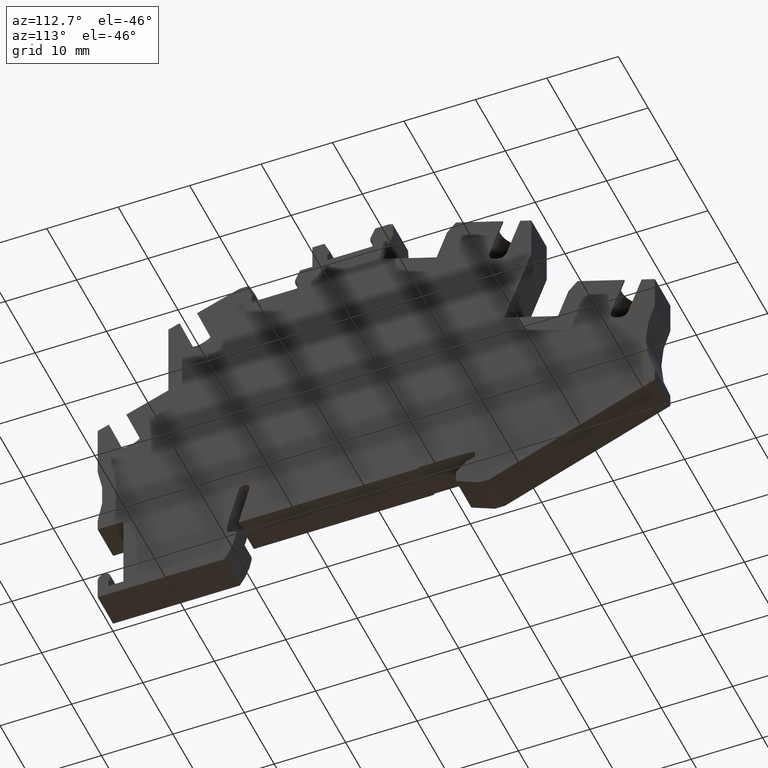
[diagram: clean part render]
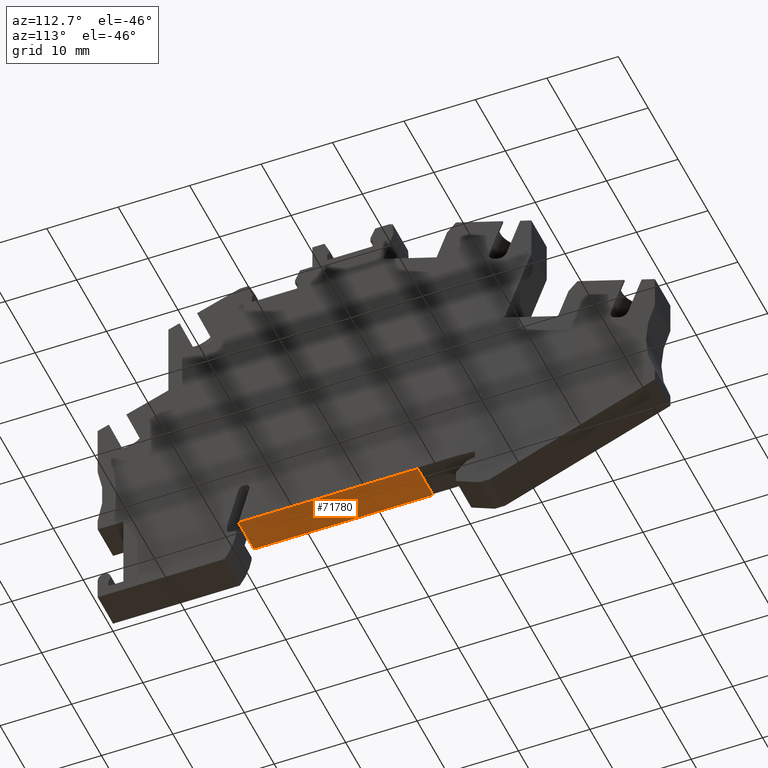
[diagram: same view with one face highlighted and labeled with its STEP entity id]
A machine part, auxiliary view. The second image highlights one B-rep face of the part: STEP entity #71780.
In plain terms, the highlighted planar face has unit normal (0, 0, 1).
Its self-contained STEP definition (entity closure, byte-faithful):
#1850=CARTESIAN_POINT('',(86.532167221675,-53.7567510120281,
48.7600000000309));
#1860=VERTEX_POINT('',#1850);
#1890=CARTESIAN_POINT('',(101.113826887599,-53.7567510120281,
48.7600000000302));
#1900=DIRECTION('',(1.,-4.24690368568111E-28,-4.8531042333675E-14));
#1910=VECTOR('',#1900,1.);
#1920=LINE('',#1890,#1910);
#1930=CARTESIAN_POINT('',(111.632167221676,-53.756751012028,
48.7600000000297));
#1940=VERTEX_POINT('',#1930);
#1950=EDGE_CURVE('',#1860,#1940,#1920,.T.);
#10480=CARTESIAN_POINT('',(111.632167221676,-53.7567510120279,
53.9100000000273));
#10490=VERTEX_POINT('',#10480);
#10520=CARTESIAN_POINT('',(101.113826887599,-53.756751012028,
53.9100000000278));
#10530=DIRECTION('',(1.,-4.24690368568111E-28,-4.8531042333675E-14));
#10540=VECTOR('',#10530,1.);
#10550=LINE('',#10520,#10540);
#10560=CARTESIAN_POINT('',(86.5321672216753,-53.756751012028,
53.9100000000285));
#10570=VERTEX_POINT('',#10560);
#10580=EDGE_CURVE('',#10570,#10490,#10550,.T.);
#71440=CARTESIAN_POINT('',(111.632167221676,-53.7567510120272,
48.7600000000297));
#71450=DIRECTION('',(4.8531042333675E-14,8.75090144671021E-15,1.));
#71460=VECTOR('',#71450,1.);
#71470=LINE('',#71440,#71460);
#71480=EDGE_CURVE('',#1940,#10490,#71470,.T.);
#71620=CARTESIAN_POINT('',(87.1837799080968,-53.7567510120281,
48.7600000000309));
#71630=DIRECTION('',(0.,1.,-8.75090144671021E-15));
#71640=DIRECTION('',(-1.,4.24690368568111E-28,4.8531042333675E-14));
#71650=AXIS2_PLACEMENT_3D('',#71620,#71630,#71640);
#71660=PLANE('',#71650);
#71670=CARTESIAN_POINT('',(86.532167221675,-53.7567510120281,
48.7600000000309));
#71680=DIRECTION('',(-4.8531042333675E-14,-8.75090144671021E-15,-1.));
#71690=VECTOR('',#71680,1.);
#71700=LINE('',#71670,#71690);
#71710=EDGE_CURVE('',#10570,#1860,#71700,.T.);
#71720=ORIENTED_EDGE('',*,*,#71710,.T.);
#71730=ORIENTED_EDGE('',*,*,#10580,.F.);
#71740=ORIENTED_EDGE('',*,*,#71480,.T.);
#71750=ORIENTED_EDGE('',*,*,#1950,.T.);
#71760=EDGE_LOOP('',(#71750,#71740,#71730,#71720));
#71770=FACE_OUTER_BOUND('',#71760,.T.);
#71780=ADVANCED_FACE('',(#71770),#71660,.F.);